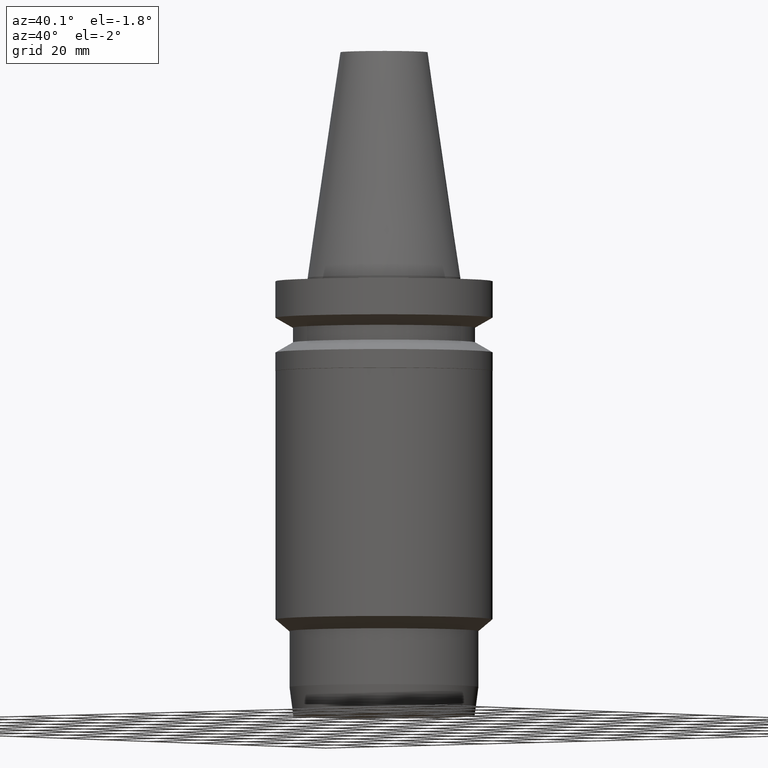
[diagram: clean part render]
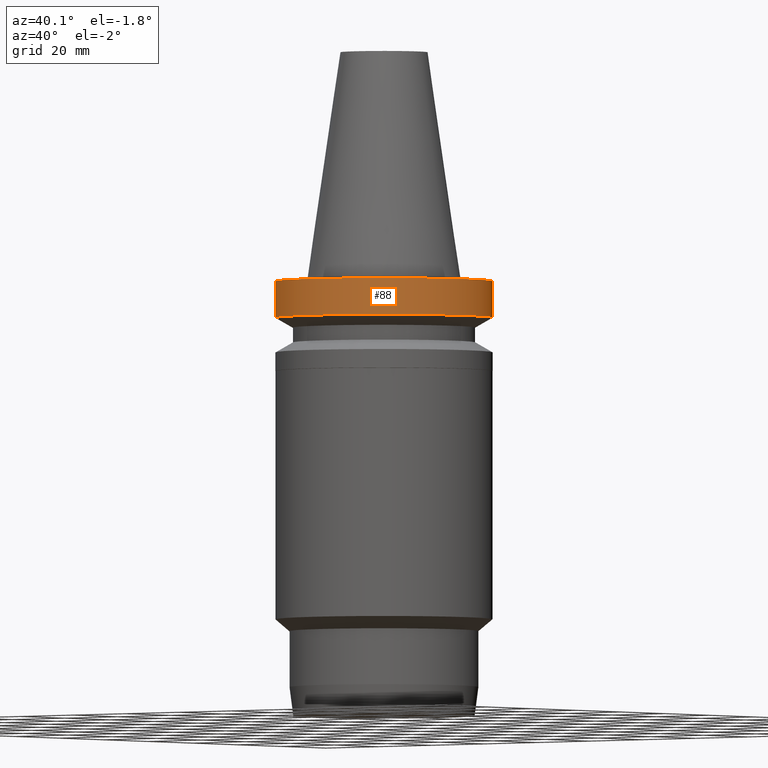
[diagram: same view with one face highlighted and labeled with its STEP entity id]
A machine part, auxiliary view. The second image highlights one B-rep face of the part: STEP entity #88.
In plain terms, the highlighted cylindrical surface (bore or boss wall) has radius 31.5 mm, axis along (0, -0, -1).
Its self-contained STEP definition (entity closure, byte-faithful):
#65=EDGE_CURVE('Unnamed[1]',#161,#161,#162,.T.);
#88=ADVANCED_FACE('Unnamed[1]',(#197,#198),#199,.T.);
#97=EDGE_CURVE('Unnamed[1]',#212,#212,#213,.T.);
#161=VERTEX_POINT('',#289);
#162=CIRCLE('',#290,31.5000000000003);
#197=FACE_BOUND('',#334,.T.);
#198=FACE_BOUND('',#335,.T.);
#199=CYLINDRICAL_SURFACE('',#336,31.5);
#212=VERTEX_POINT('',#353);
#213=CIRCLE('',#354,31.4999999999996);
#289=CARTESIAN_POINT('',(7.08182973902924E-016,31.5000000000004,-11.5655056526664));
#290=AXIS2_PLACEMENT_3D('',#432,#433,#434);
#334=EDGE_LOOP('',(#472));
#335=EDGE_LOOP('',(#473));
#336=AXIS2_PLACEMENT_3D('',#474,#475,#476);
#353=CARTESIAN_POINT('',(6.12323399573568E-017,31.4999999999997,-0.999999999999825));
#354=AXIS2_PLACEMENT_3D('',#489,#490,#491);
#432=CARTESIAN_POINT('',(7.08182973902923E-016,4.13055302069062E-014,-11.5655056526663));
#433=DIRECTION('',(6.12323399573677E-017,-4.59983100815415E-016,-1.0));
#434=DIRECTION('',(2.33386888730046E-032,1.0,-4.59983100815415E-016));
#472=ORIENTED_EDGE('',*,*,#65,.F.);
#473=ORIENTED_EDGE('',*,*,#97,.T.);
#474=CARTESIAN_POINT('',(3.8470765693014E-016,4.37355072328044E-014,-6.28275282633308));
#475=DIRECTION('',(6.12323399573677E-017,-4.59983100815415E-016,-1.0));
#476=DIRECTION('',(2.33386888730046E-032,1.0,-4.59983100815415E-016));
#489=CARTESIAN_POINT('',(6.12323399573563E-017,4.61654842587026E-014,-0.999999999999815));
#490=DIRECTION('',(6.12323399573677E-017,-4.59983100815415E-016,-1.0));
#491=DIRECTION('',(2.33386888730046E-032,1.0,-4.59983100815415E-016));